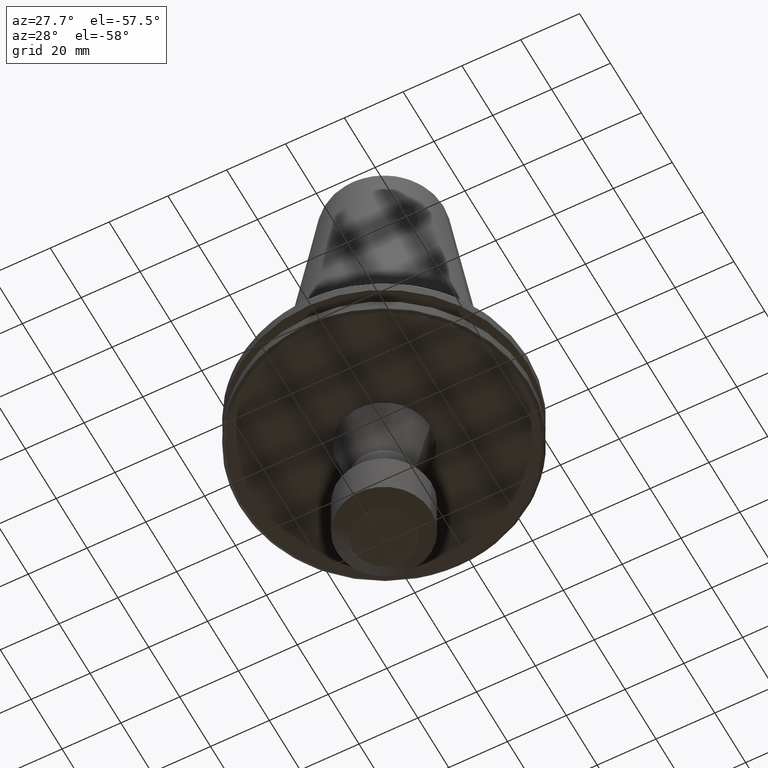
[diagram: clean part render]
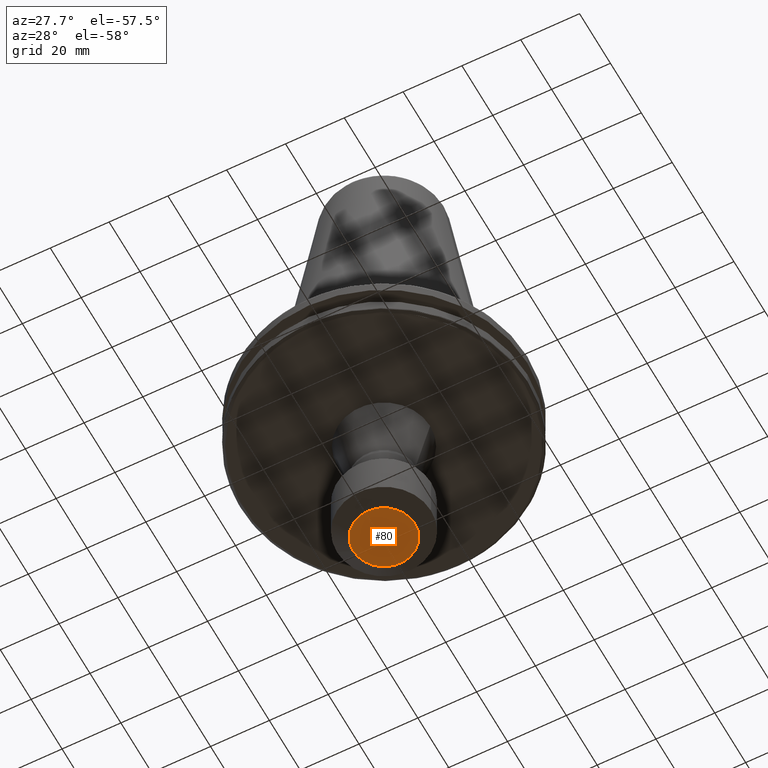
[diagram: same view with one face highlighted and labeled with its STEP entity id]
A machine part, auxiliary view. The second image highlights one B-rep face of the part: STEP entity #80.
In plain terms, the highlighted planar face has unit normal (0, 0, 1).
Its self-contained STEP definition (entity closure, byte-faithful):
#75 = ORIENTED_EDGE ( 'NONE', *, *, #2216, .F. ) ;
#80 = ADVANCED_FACE ( 'NONE', ( #2874 ), #3088, .F. ) ;
#155 = CIRCLE ( 'NONE', #1734, 10.50000000000000200 ) ;
#333 = CARTESIAN_POINT ( 'NONE',  ( 0.0000000000000000000, 0.0000000000000000000, -70.00000000000000000 ) ) ;
#598 = DIRECTION ( 'NONE',  ( 1.000000000000000000, 0.0000000000000000000, 0.0000000000000000000 ) ) ;
#881 = CARTESIAN_POINT ( 'NONE',  ( 10.50000000000000200, 0.0000000000000000000, -70.00000000000000000 ) ) ;
#1236 = AXIS2_PLACEMENT_3D ( 'NONE', #2337, #2804, #2801 ) ;
#1252 = AXIS2_PLACEMENT_3D ( 'NONE', #2845, #1498, #3101 ) ;
#1289 = CIRCLE ( 'NONE', #1252, 10.50000000000000200 ) ;
#1498 = DIRECTION ( 'NONE',  ( 0.0000000000000000000, -0.0000000000000000000, 1.000000000000000000 ) ) ;
#1734 = AXIS2_PLACEMENT_3D ( 'NONE', #333, #2062, #598 ) ;
#1755 = EDGE_CURVE ( 'NONE', #1887, #2185, #155, .T. ) ;
#1887 = VERTEX_POINT ( 'NONE', #881 ) ;
#2044 = ORIENTED_EDGE ( 'NONE', *, *, #1755, .F. ) ;
#2062 = DIRECTION ( 'NONE',  ( 0.0000000000000000000, -0.0000000000000000000, 1.000000000000000000 ) ) ;
#2154 = EDGE_LOOP ( 'NONE', ( #2044, #75 ) ) ;
#2185 = VERTEX_POINT ( 'NONE', #3082 ) ;
#2216 = EDGE_CURVE ( 'NONE', #2185, #1887, #1289, .T. ) ;
#2337 = CARTESIAN_POINT ( 'NONE',  ( 0.0000000000000000000, 0.0000000000000000000, -70.00000000000000000 ) ) ;
#2801 = DIRECTION ( 'NONE',  ( 1.000000000000000000, 0.0000000000000000000, -0.0000000000000000000 ) ) ;
#2804 = DIRECTION ( 'NONE',  ( 0.0000000000000000000, 0.0000000000000000000, 1.000000000000000000 ) ) ;
#2845 = CARTESIAN_POINT ( 'NONE',  ( 0.0000000000000000000, 0.0000000000000000000, -70.00000000000000000 ) ) ;
#2874 = FACE_OUTER_BOUND ( 'NONE', #2154, .T. ) ;
#3082 = CARTESIAN_POINT ( 'NONE',  ( -10.50000000000000200, 1.622657008870243100E-015, -70.00000000000000000 ) ) ;
#3088 = PLANE ( 'NONE',  #1236 ) ;
#3101 = DIRECTION ( 'NONE',  ( 1.000000000000000000, 0.0000000000000000000, 0.0000000000000000000 ) ) ;